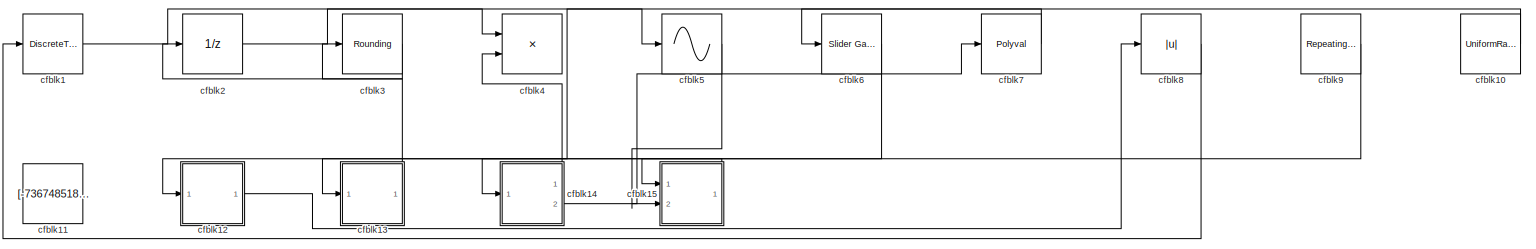
[diagram: root canvas - part 1/1, most of the canvas]
MODEL slx_8368a856961a
KIND model
CONFIG AbsTol = auto
CONFIG EnableMultiTasking = off
CONFIG FixedStep = auto
CONFIG MaxStep = auto
CONFIG MinStep = auto
CONFIG RelTol = 1e-3
CONFIG SampleTimeConstraint = Unconstrained
CONFIG SolverName = VariableStepAuto
CONFIG StartTime = 0.0
CONFIG StopTime = 10.0
BLOCK [DiscreteTransferFcn] cfblk1
  InputPortMap = u0
  Ports = [1, 1]
  SampleTime = 1
BLOCK [UniformRandomNumber] cfblk10
  Maximum = [2969662637.402277]
  Minimum = [-814846663.886244]
  SampleTime = 0.1
  Seed = [51641665.000000]
BLOCK [Constant] cfblk11
  SampleTime = 1
  Value = [-736748518.800824]
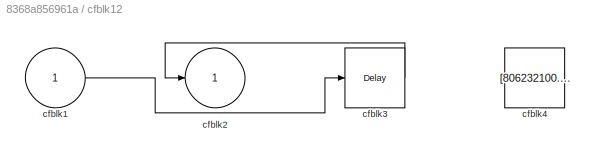
BLOCK [SubSystem] cfblk12
  Ports = [1, 1]
  RequestExecContextInheritance = off
BLOCK [Inport] cfblk12/cfblk1
BLOCK [Outport] cfblk12/cfblk2
BLOCK [Delay] cfblk12/cfblk3
  InputPortMap = u0
  Ports = [1, 1]
  SampleTime = 1
BLOCK [Constant] cfblk12/cfblk4
  SampleTime = 1
  Value = [806232100.812742]
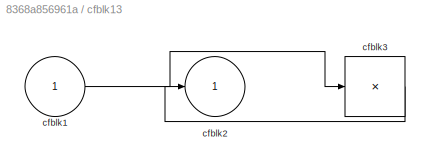
BLOCK [SubSystem] cfblk13
  Ports = [1, 1]
  RequestExecContextInheritance = off
BLOCK [Inport] cfblk13/cfblk1
BLOCK [Outport] cfblk13/cfblk2
BLOCK [Product] cfblk13/cfblk3
  Inputs = *
  Ports = [1, 1]
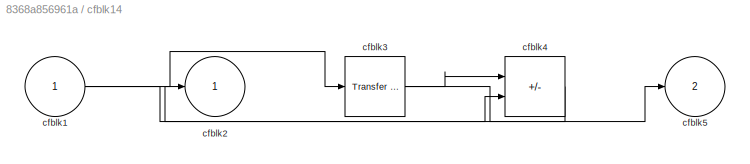
BLOCK [SubSystem] cfblk14
  Ports = [1, 2]
  RequestExecContextInheritance = off
BLOCK [Inport] cfblk14/cfblk1
BLOCK [Outport] cfblk14/cfblk2
BLOCK [Reference] cfblk14/cfblk3  REF=simulink/Discrete/Transfer Fcn
First Order
  Ports = [1, 1]
  SourceBlock = simulink/Discrete/Transfer Fcn\nFirst Order
  SourceProductBaseCode = SL
  SourceType = First Order Transfer Fcn
BLOCK [Sum] cfblk14/cfblk4
  IconShape = rectangular
  Inputs = -+
  Ports = [2, 1]
BLOCK [Outport] cfblk14/cfblk5
  Port = 2
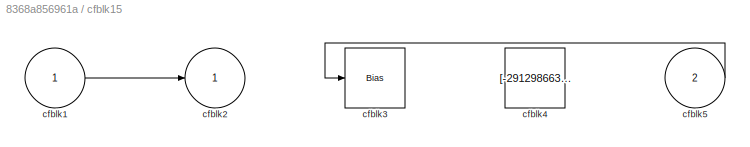
BLOCK [SubSystem] cfblk15
  Ports = [2, 1]
  RequestExecContextInheritance = off
BLOCK [Inport] cfblk15/cfblk1
BLOCK [Outport] cfblk15/cfblk2
BLOCK [Bias] cfblk15/cfblk3
  Bias = [695123622.113417]
  SaturateOnIntegerOverflow = off
BLOCK [Constant] cfblk15/cfblk4
  SampleTime = 1
  Value = [-291298663.036179]
BLOCK [Inport] cfblk15/cfblk5
  Port = 2
BLOCK [UnitDelay] cfblk2
  HasFrameUpgradeWarning = on
BLOCK [Rounding] cfblk3
BLOCK [Product] cfblk4
  Ports = [2, 1]
BLOCK [Sin] cfblk5
  Ports = [1, 1]
  SampleTime = 0
  TimeSource = Use external signal
BLOCK [Reference] cfblk6  REF=simulink/Math
Operations/Slider
Gain
  Ports = [1, 1]
  SourceBlock = simulink/Math\nOperations/Slider\nGain
  SourceProductBaseCode = SL
  SourceType = Slider Gain
BLOCK [Polyval] cfblk7
  Coefs = [ +2.081618890e-019, -1.441693666e-014, +4.719686976e-010, -8.536869453e-006, +1.621573104e-001, -8.087801117e+001 ]
BLOCK [Abs] cfblk8
  SaturateOnIntegerOverflow = off
BLOCK [Reference] cfblk9  REF=simulink/Sources/Repeating
Sequence
  Ports = [0, 1]
  SourceBlock = simulink/Sources/Repeating\nSequence
  SourceProductBaseCode = SL
  SourceType = Repeating table
LINE cfblk10:1 -> cfblk13:1
LINE cfblk12/cfblk1:1 -> cfblk12/cfblk3:1
LINE cfblk12/cfblk3:1 -> cfblk12/cfblk2:1
LINE cfblk12:1 -> cfblk8:1
LINE cfblk13/cfblk1:1 -> cfblk13/cfblk3:1
LINE cfblk13/cfblk3:1 -> cfblk13/cfblk2:1
LINE cfblk13:1 -> cfblk3:1
NET cfblk14/cfblk1:1 -> cfblk14/cfblk3:1, cfblk14/cfblk4:2
NET cfblk14/cfblk3:1 -> cfblk14/cfblk4:1, cfblk14/cfblk5:1
LINE cfblk14/cfblk4:1 -> cfblk14/cfblk2:1
LINE cfblk14:1 -> cfblk4:2
LINE cfblk14:2 -> cfblk7:1
LINE cfblk15/cfblk1:1 -> cfblk15/cfblk2:1
LINE cfblk15/cfblk5:1 -> cfblk15/cfblk3:1
LINE cfblk15:1 -> cfblk12:1
LINE cfblk1:1 -> cfblk4:1
LINE cfblk2:1 -> cfblk5:1
LINE cfblk3:1 -> cfblk2:1
LINE cfblk5:1 -> cfblk15:2
LINE cfblk6:1 -> cfblk15:1
LINE cfblk7:1 -> cfblk6:1
LINE cfblk8:1 -> cfblk1:1
LINE cfblk9:1 -> cfblk14:1
note: NET lines group one-source signal fan-out (src -> all destinations, sorted); 1:1 wires keep LINE
